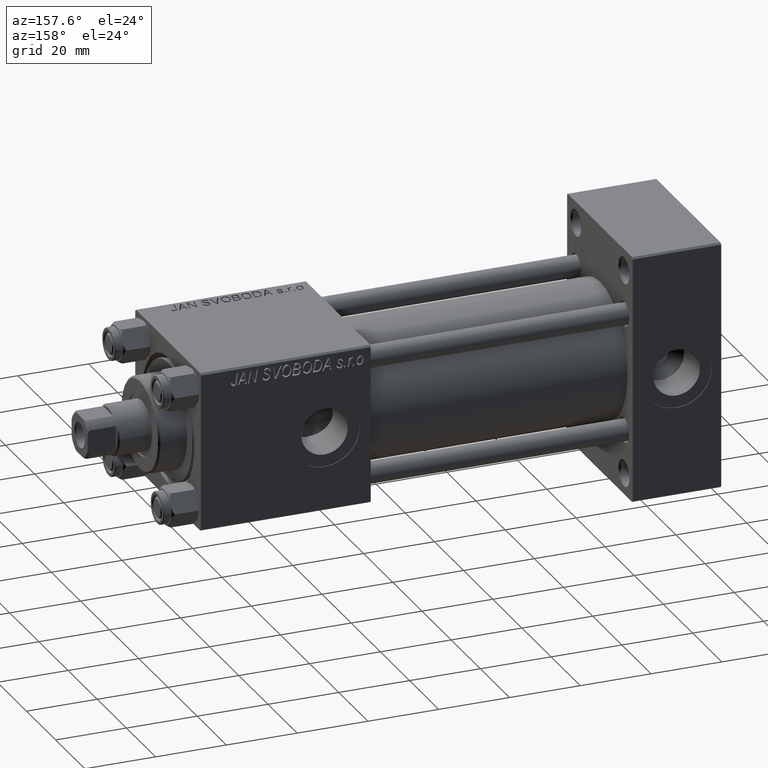
[diagram: clean part render]
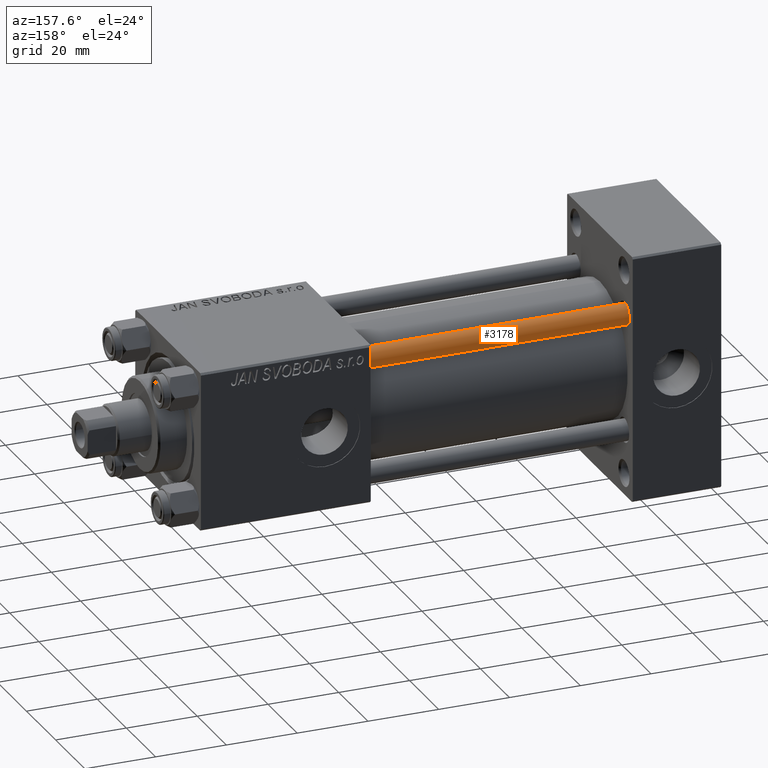
[diagram: same view with one face highlighted and labeled with its STEP entity id]
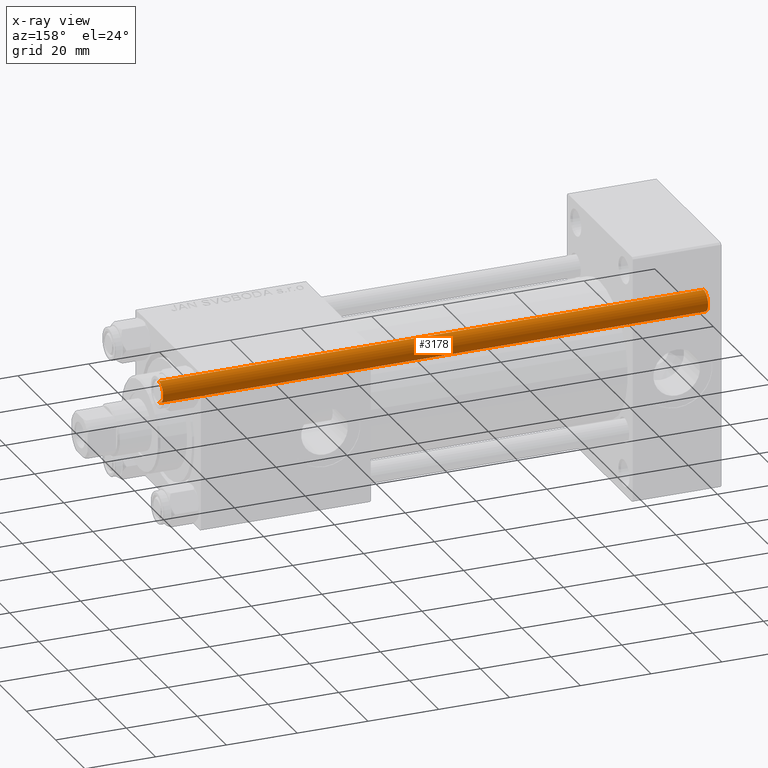
[diagram: x-ray of the same camera — body ghosted, the highlighted face saturated]
A machine part, auxiliary view. The second image highlights one B-rep face of the part: STEP entity #3178.
The next image is the same camera in x-ray: the body ghosted, the highlighted face saturated — about 0% of this face is hidden behind the body in this view.
In plain terms, the highlighted cylindrical surface (edge-blend (fillet) strip) has radius 3 mm, axis along (1, 0, 0).
Its self-contained STEP definition (entity closure, byte-faithful):
#726 = ORIENTED_EDGE ( 'NONE', *, *, #8073, .F. ) ;
#1921 = DIRECTION ( 'NONE',  ( 1.000000000000000000, 0.000000000000000000, 0.000000000000000000 ) ) ;
#2273 = VERTEX_POINT ( 'NONE', #21923 ) ;
#3178 = ADVANCED_FACE ( 'NONE', ( #32547 ), #48673, .T. ) ;
#3913 = LINE ( 'NONE', #19350, #29271 ) ;
#5688 = DIRECTION ( 'NONE',  ( -0.000000000000000000, -0.000000000000000000, -1.000000000000000000 ) ) ;
#8073 = EDGE_CURVE ( 'NONE', #44269, #46179, #45100, .T. ) ;
#9248 = CIRCLE ( 'NONE', #44790, 3.000000000000000444 ) ;
#12660 = CARTESIAN_POINT ( 'NONE',  ( -3.000000000000000444, 0.000000000000000000, 0.5000000000000004441 ) ) ;
#17425 = EDGE_CURVE ( 'NONE', #41903, #46179, #32101, .T. ) ;
#17639 = CARTESIAN_POINT ( 'NONE',  ( 0.000000000000000000, 0.000000000000000000, 155.0000000000000000 ) ) ;
#18290 = CARTESIAN_POINT ( 'NONE',  ( 3.000000000000000444, 3.673940397442060361E-16, 0.5000000000000004441 ) ) ;
#19350 = CARTESIAN_POINT ( 'NONE',  ( -3.000000000000000444, 0.000000000000000000, 155.0000000000000000 ) ) ;
#21923 = CARTESIAN_POINT ( 'NONE',  ( -3.000000000000000444, 0.000000000000000000, 154.5000000000000284 ) ) ;
#22858 = ORIENTED_EDGE ( 'NONE', *, *, #17425, .T. ) ;
#23405 = DIRECTION ( 'NONE',  ( -0.000000000000000000, -0.000000000000000000, -1.000000000000000000 ) ) ;
#25649 = AXIS2_PLACEMENT_3D ( 'NONE', #34818, #34577, #34069 ) ;
#28513 = DIRECTION ( 'NONE',  ( -0.000000000000000000, -0.000000000000000000, -1.000000000000000000 ) ) ;
#29271 = VECTOR ( 'NONE', #23405, 1000.000000000000000 ) ;
#29953 = EDGE_CURVE ( 'NONE', #2273, #41903, #3913, .T. ) ;
#31746 = AXIS2_PLACEMENT_3D ( 'NONE', #17639, #28513, #36580 ) ;
#32101 = CIRCLE ( 'NONE', #25649, 3.000000000000000444 ) ;
#32547 = FACE_OUTER_BOUND ( 'NONE', #45135, .T. ) ;
#32919 = ORIENTED_EDGE ( 'NONE', *, *, #36653, .T. ) ;
#33032 = CARTESIAN_POINT ( 'NONE',  ( 0.000000000000000000, 0.000000000000000000, 154.5000000000000284 ) ) ;
#33185 = CARTESIAN_POINT ( 'NONE',  ( 3.000000000000000444, 3.673940397442060361E-16, 154.5000000000000284 ) ) ;
#34069 = DIRECTION ( 'NONE',  ( 1.000000000000000000, 0.000000000000000000, 0.000000000000000000 ) ) ;
#34577 = DIRECTION ( 'NONE',  ( -0.000000000000000000, -0.000000000000000000, 1.000000000000000000 ) ) ;
#34818 = CARTESIAN_POINT ( 'NONE',  ( 0.000000000000000000, 0.000000000000000000, 0.5000000000000004441 ) ) ;
#36150 = ORIENTED_EDGE ( 'NONE', *, *, #29953, .T. ) ;
#36580 = DIRECTION ( 'NONE',  ( -1.000000000000000000, 0.000000000000000000, 0.000000000000000000 ) ) ;
#36653 = EDGE_CURVE ( 'NONE', #44269, #2273, #9248, .T. ) ;
#40321 = CARTESIAN_POINT ( 'NONE',  ( 3.000000000000000444, 3.673940397442060361E-16, 155.0000000000000000 ) ) ;
#41903 = VERTEX_POINT ( 'NONE', #12660 ) ;
#42371 = VECTOR ( 'NONE', #5688, 1000.000000000000000 ) ;
#44269 = VERTEX_POINT ( 'NONE', #33185 ) ;
#44790 = AXIS2_PLACEMENT_3D ( 'NONE', #33032, #48408, #1921 ) ;
#45100 = LINE ( 'NONE', #40321, #42371 ) ;
#45135 = EDGE_LOOP ( 'NONE', ( #726, #32919, #36150, #22858 ) ) ;
#46179 = VERTEX_POINT ( 'NONE', #18290 ) ;
#48408 = DIRECTION ( 'NONE',  ( 0.000000000000000000, 0.000000000000000000, -1.000000000000000000 ) ) ;
#48673 = CYLINDRICAL_SURFACE ( 'NONE', #31746, 3.000000000000000444 ) ;